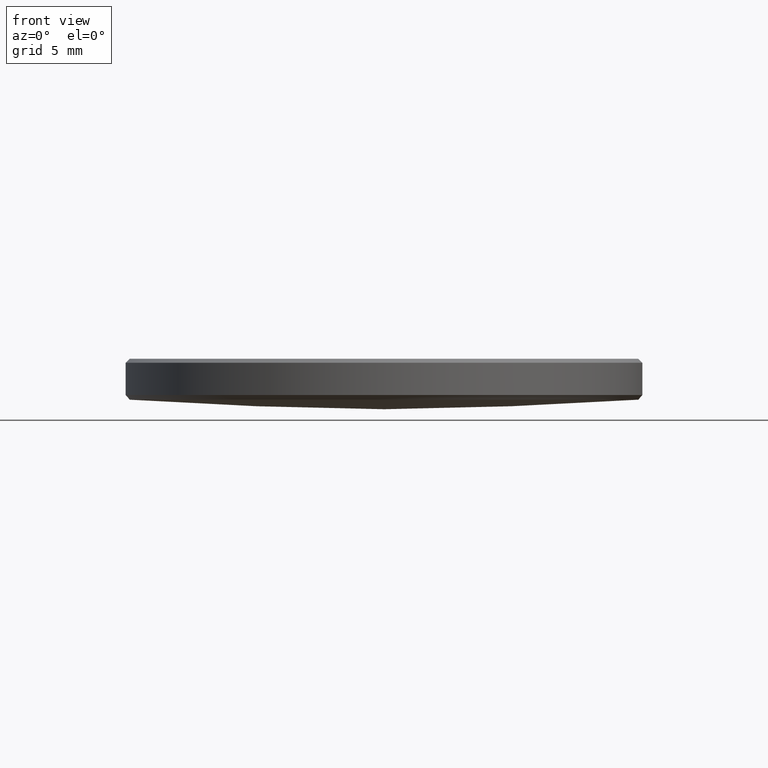
[diagram: clean part render]
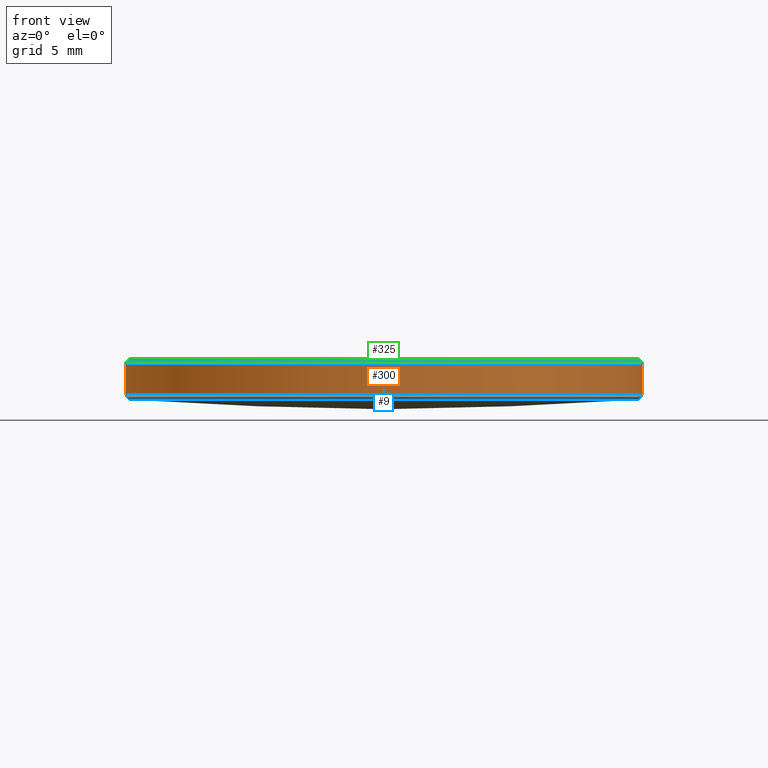
[diagram: same view with three faces highlighted in distinct colors, each labeled with its STEP entity id]
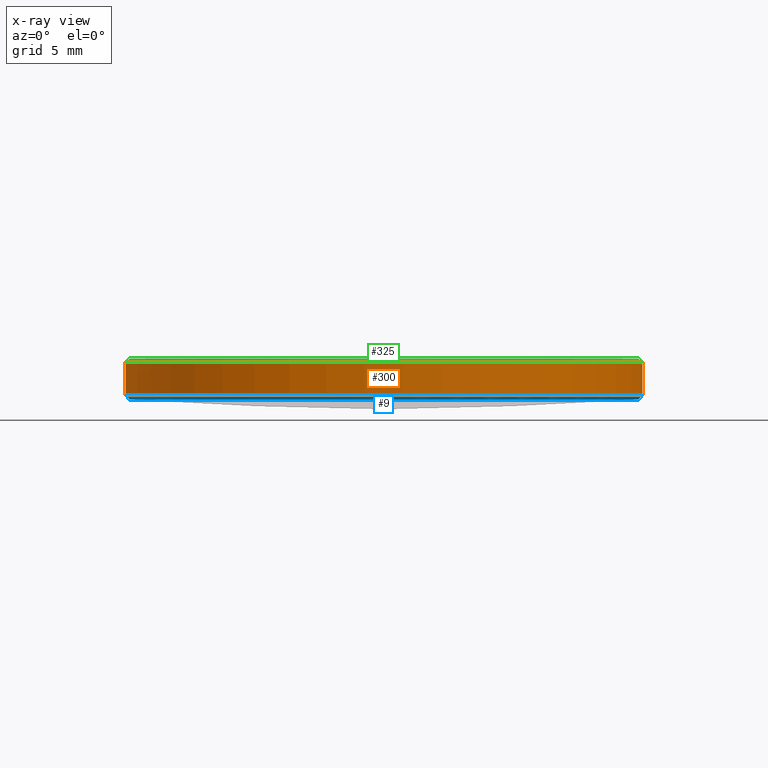
[diagram: x-ray of the same camera — body ghosted, the three highlighted faces saturated]
A machine part, front view with three faces highlighted in distinct colors.
The next image is the same camera in x-ray (body ghosted, the three faces saturated) — at least one of them is partly hidden behind the body in this view.
Their STEP definitions:

[orange] entity #300 — the highlighted cylindrical surface (partial cylindrical patch) has radius 12.7 mm, axis along (-0, -0, -1).
#4 = DIRECTION ( 'NONE',  ( -0.000000000000000000, -0.000000000000000000, -1.000000000000000000 ) ) ;
#8 = CARTESIAN_POINT ( 'NONE',  ( 0.000000000000000000, 0.000000000000000000, 10.00000000000000000 ) ) ;
#12 = CYLINDRICAL_SURFACE ( 'NONE', #14, 12.69999999999999929 ) ;
#14 = AXIS2_PLACEMENT_3D ( 'NONE', #8, #291, #68 ) ;
#29 = VECTOR ( 'NONE', #4, 1000.000000000000000 ) ;
#36 = CARTESIAN_POINT ( 'NONE',  ( -12.69999999999999929, 0.000000000000000000, 4.217170936316433583 ) ) ;
#37 = EDGE_CURVE ( 'NONE', #146, #219, #208, .T. ) ;
#43 = EDGE_CURVE ( 'NONE', #147, #129, #53, .T. ) ;
#47 = ORIENTED_EDGE ( 'NONE', *, *, #37, .T. ) ;
#49 = DIRECTION ( 'NONE',  ( 0.000000000000000000, 0.000000000000000000, -1.000000000000000000 ) ) ;
#53 = LINE ( 'NONE', #282, #29 ) ;
#66 = FACE_OUTER_BOUND ( 'NONE', #148, .T. ) ;
#68 = DIRECTION ( 'NONE',  ( -1.000000000000000000, 0.000000000000000000, 0.000000000000000000 ) ) ;
#72 = EDGE_CURVE ( 'NONE', #219, #129, #120, .T. ) ;
#73 = AXIS2_PLACEMENT_3D ( 'NONE', #87, #49, #149 ) ;
#87 = CARTESIAN_POINT ( 'NONE',  ( 0.000000000000000000, 0.000000000000000000, 5.799999999999916334 ) ) ;
#93 = ORIENTED_EDGE ( 'NONE', *, *, #43, .F. ) ;
#96 = ORIENTED_EDGE ( 'NONE', *, *, #133, .T. ) ;
#97 = VECTOR ( 'NONE', #234, 1000.000000000000000 ) ;
#120 = CIRCLE ( 'NONE', #321, 12.69999999999999929 ) ;
#129 = VERTEX_POINT ( 'NONE', #162 ) ;
#133 = EDGE_CURVE ( 'NONE', #147, #146, #194, .T. ) ;
#146 = VERTEX_POINT ( 'NONE', #307 ) ;
#147 = VERTEX_POINT ( 'NONE', #301 ) ;
#148 = EDGE_LOOP ( 'NONE', ( #93, #96, #47, #273 ) ) ;
#149 = DIRECTION ( 'NONE',  ( 1.000000000000000000, 0.000000000000000000, 0.000000000000000000 ) ) ;
#162 = CARTESIAN_POINT ( 'NONE',  ( 12.69999999999999929, 1.555301434917138433E-15, 4.217170936316433583 ) ) ;
#194 = CIRCLE ( 'NONE', #73, 12.69999999999999929 ) ;
#208 = LINE ( 'NONE', #278, #97 ) ;
#219 = VERTEX_POINT ( 'NONE', #36 ) ;
#234 = DIRECTION ( 'NONE',  ( -0.000000000000000000, -0.000000000000000000, -1.000000000000000000 ) ) ;
#273 = ORIENTED_EDGE ( 'NONE', *, *, #72, .T. ) ;
#278 = CARTESIAN_POINT ( 'NONE',  ( -12.69999999999999929, 0.000000000000000000, 10.00000000000000000 ) ) ;
#281 = DIRECTION ( 'NONE',  ( -1.000000000000000000, 0.000000000000000000, 0.000000000000000000 ) ) ;
#282 = CARTESIAN_POINT ( 'NONE',  ( 12.69999999999999929, 1.555301434917138433E-15, 10.00000000000000000 ) ) ;
#291 = DIRECTION ( 'NONE',  ( -0.000000000000000000, -0.000000000000000000, -1.000000000000000000 ) ) ;
#300 = ADVANCED_FACE ( 'NONE', ( #66 ), #12, .T. ) ;
#301 = CARTESIAN_POINT ( 'NONE',  ( 12.69999999999999929, 1.555301434917138433E-15, 5.799999999999916334 ) ) ;
#307 = CARTESIAN_POINT ( 'NONE',  ( -12.69999999999999929, 0.000000000000000000, 5.799999999999916334 ) ) ;
#321 = AXIS2_PLACEMENT_3D ( 'NONE', #330, #327, #281 ) ;
#327 = DIRECTION ( 'NONE',  ( -0.000000000000000000, -0.000000000000000000, 1.000000000000000000 ) ) ;
#330 = CARTESIAN_POINT ( 'NONE',  ( 0.000000000000000000, 0.000000000000000000, 4.217170936316433583 ) ) ;

[blue] entity #9 — the highlighted conical surface has half-angle 40.632 deg.
#1 = LINE ( 'NONE', #5, #167 ) ;
#5 = CARTESIAN_POINT ( 'NONE',  ( 12.69999999999999929, 0.000000000000000000, 4.217170936316433583 ) ) ;
#9 = ADVANCED_FACE ( 'NONE', ( #180 ), #127, .T. ) ;
#16 = EDGE_CURVE ( 'NONE', #39, #75, #314, .T. ) ;
#26 = CARTESIAN_POINT ( 'NONE',  ( 12.50069123197759424, 0.000000000000000000, 3.984896188597097932 ) ) ;
#30 = DIRECTION ( 'NONE',  ( 1.000000000000000000, 0.000000000000000000, 0.000000000000000000 ) ) ;
#34 = CARTESIAN_POINT ( 'NONE',  ( 0.000000000000000000, 0.000000000000000000, 4.217170936316433583 ) ) ;
#36 = CARTESIAN_POINT ( 'NONE',  ( -12.69999999999999929, 0.000000000000000000, 4.217170936316433583 ) ) ;
#39 = VERTEX_POINT ( 'NONE', #179 ) ;
#44 = ORIENTED_EDGE ( 'NONE', *, *, #151, .F. ) ;
#58 = CARTESIAN_POINT ( 'NONE',  ( 0.000000000000000000, 0.000000000000000000, 3.984896188597097932 ) ) ;
#72 = EDGE_CURVE ( 'NONE', #219, #129, #120, .T. ) ;
#74 = ORIENTED_EDGE ( 'NONE', *, *, #82, .F. ) ;
#75 = VERTEX_POINT ( 'NONE', #157 ) ;
#76 = EDGE_LOOP ( 'NONE', ( #44, #246, #74, #177, #247 ) ) ;
#82 = EDGE_CURVE ( 'NONE', #98, #39, #145, .T. ) ;
#85 = DIRECTION ( 'NONE',  ( -0.000000000000000000, -0.000000000000000000, 1.000000000000000000 ) ) ;
#86 = CARTESIAN_POINT ( 'NONE',  ( 0.000000000000000000, 0.000000000000000000, 3.984896188597097932 ) ) ;
#98 = VERTEX_POINT ( 'NONE', #26 ) ;
#112 = CARTESIAN_POINT ( 'NONE',  ( -12.69999999999999929, 1.555301434917138433E-15, 4.217170936316433583 ) ) ;
#116 = DIRECTION ( 'NONE',  ( 0.000000000000000000, 0.000000000000000000, -1.000000000000000000 ) ) ;
#120 = CIRCLE ( 'NONE', #321, 12.69999999999999929 ) ;
#127 = CONICAL_SURFACE ( 'NONE', #135, 12.69999999999999929, 0.7091624202061372895 ) ;
#129 = VERTEX_POINT ( 'NONE', #162 ) ;
#130 = DIRECTION ( 'NONE',  ( -0.6511983538683498995, 7.974879796749002511E-17, 0.7589075727116915138 ) ) ;
#135 = AXIS2_PLACEMENT_3D ( 'NONE', #34, #85, #232 ) ;
#145 = CIRCLE ( 'NONE', #173, 12.50069123197759424 ) ;
#151 = EDGE_CURVE ( 'NONE', #75, #219, #154, .T. ) ;
#154 = LINE ( 'NONE', #112, #252 ) ;
#157 = CARTESIAN_POINT ( 'NONE',  ( -12.50069123197759424, 1.543097292677106632E-15, 3.984896188597097932 ) ) ;
#162 = CARTESIAN_POINT ( 'NONE',  ( 12.69999999999999929, 1.555301434917138433E-15, 4.217170936316433583 ) ) ;
#167 = VECTOR ( 'NONE', #209, 1000.000000000000000 ) ;
#173 = AXIS2_PLACEMENT_3D ( 'NONE', #58, #116, #30 ) ;
#175 = AXIS2_PLACEMENT_3D ( 'NONE', #86, #184, #210 ) ;
#177 = ORIENTED_EDGE ( 'NONE', *, *, #253, .T. ) ;
#179 = CARTESIAN_POINT ( 'NONE',  ( -1.530893150437094356E-15, -12.50069123197775767, 3.984896188597097932 ) ) ;
#180 = FACE_OUTER_BOUND ( 'NONE', #76, .T. ) ;
#184 = DIRECTION ( 'NONE',  ( 0.000000000000000000, 0.000000000000000000, -1.000000000000000000 ) ) ;
#209 = DIRECTION ( 'NONE',  ( 0.6511983538683498995, 0.000000000000000000, 0.7589075727116915138 ) ) ;
#210 = DIRECTION ( 'NONE',  ( 1.000000000000000000, 0.000000000000000000, 0.000000000000000000 ) ) ;
#219 = VERTEX_POINT ( 'NONE', #36 ) ;
#232 = DIRECTION ( 'NONE',  ( 1.000000000000000000, 0.000000000000000000, 0.000000000000000000 ) ) ;
#246 = ORIENTED_EDGE ( 'NONE', *, *, #16, .F. ) ;
#247 = ORIENTED_EDGE ( 'NONE', *, *, #72, .F. ) ;
#252 = VECTOR ( 'NONE', #130, 1000.000000000000000 ) ;
#253 = EDGE_CURVE ( 'NONE', #98, #129, #1, .T. ) ;
#281 = DIRECTION ( 'NONE',  ( -1.000000000000000000, 0.000000000000000000, 0.000000000000000000 ) ) ;
#314 = CIRCLE ( 'NONE', #175, 12.50069123197759424 ) ;
#321 = AXIS2_PLACEMENT_3D ( 'NONE', #330, #327, #281 ) ;
#327 = DIRECTION ( 'NONE',  ( -0.000000000000000000, -0.000000000000000000, 1.000000000000000000 ) ) ;
#330 = CARTESIAN_POINT ( 'NONE',  ( 0.000000000000000000, 0.000000000000000000, 4.217170936316433583 ) ) ;

[green] entity #325 — the highlighted conical surface has half-angle 45 deg.
#3 = DIRECTION ( 'NONE',  ( -0.7071067811865506814, 0.000000000000000000, -0.7071067811865443531 ) ) ;
#13 = CIRCLE ( 'NONE', #119, 12.50409250075131062 ) ;
#17 = CIRCLE ( 'NONE', #238, 12.50409250075131062 ) ;
#24 = VERTEX_POINT ( 'NONE', #236 ) ;
#49 = DIRECTION ( 'NONE',  ( 0.000000000000000000, 0.000000000000000000, -1.000000000000000000 ) ) ;
#69 = VECTOR ( 'NONE', #3, 1000.000000000000114 ) ;
#73 = AXIS2_PLACEMENT_3D ( 'NONE', #87, #49, #149 ) ;
#78 = EDGE_LOOP ( 'NONE', ( #320, #196, #200, #172, #102 ) ) ;
#87 = CARTESIAN_POINT ( 'NONE',  ( 0.000000000000000000, 0.000000000000000000, 5.799999999999916334 ) ) ;
#92 = DIRECTION ( 'NONE',  ( -1.000000000000000000, 0.000000000000000000, 0.000000000000000000 ) ) ;
#102 = ORIENTED_EDGE ( 'NONE', *, *, #133, .F. ) ;
#103 = CONICAL_SURFACE ( 'NONE', #226, 12.50409250075130529, 0.7853981633974528309 ) ;
#107 = CARTESIAN_POINT ( 'NONE',  ( 0.000000000000000000, 0.000000000000000000, 5.995907499248387396 ) ) ;
#113 = DIRECTION ( 'NONE',  ( 1.000000000000000000, 0.000000000000000000, 0.000000000000000000 ) ) ;
#119 = AXIS2_PLACEMENT_3D ( 'NONE', #224, #285, #202 ) ;
#133 = EDGE_CURVE ( 'NONE', #147, #146, #194, .T. ) ;
#146 = VERTEX_POINT ( 'NONE', #307 ) ;
#147 = VERTEX_POINT ( 'NONE', #301 ) ;
#149 = DIRECTION ( 'NONE',  ( 1.000000000000000000, 0.000000000000000000, 0.000000000000000000 ) ) ;
#153 = LINE ( 'NONE', #156, #205 ) ;
#156 = CARTESIAN_POINT ( 'NONE',  ( 12.50409250075130529, 1.531309685728750775E-15, 5.995907499248609440 ) ) ;
#166 = EDGE_CURVE ( 'NONE', #198, #191, #13, .T. ) ;
#172 = ORIENTED_EDGE ( 'NONE', *, *, #266, .T. ) ;
#185 = CARTESIAN_POINT ( 'NONE',  ( -12.50409250075131062, 0.000000000000000000, 5.995907499248387396 ) ) ;
#191 = VERTEX_POINT ( 'NONE', #306 ) ;
#194 = CIRCLE ( 'NONE', #73, 12.69999999999999929 ) ;
#196 = ORIENTED_EDGE ( 'NONE', *, *, #263, .F. ) ;
#198 = VERTEX_POINT ( 'NONE', #185 ) ;
#200 = ORIENTED_EDGE ( 'NONE', *, *, #166, .F. ) ;
#202 = DIRECTION ( 'NONE',  ( 1.000000000000000000, 0.000000000000000000, 0.000000000000000000 ) ) ;
#203 = DIRECTION ( 'NONE',  ( -0.000000000000000000, -0.000000000000000000, 1.000000000000000000 ) ) ;
#205 = VECTOR ( 'NONE', #250, 1000.000000000000114 ) ;
#216 = CARTESIAN_POINT ( 'NONE',  ( 0.000000000000000000, 0.000000000000000000, 5.995907499248609440 ) ) ;
#218 = EDGE_CURVE ( 'NONE', #24, #147, #153, .T. ) ;
#224 = CARTESIAN_POINT ( 'NONE',  ( 0.000000000000000000, 0.000000000000000000, 5.995907499248387396 ) ) ;
#226 = AXIS2_PLACEMENT_3D ( 'NONE', #216, #316, #92 ) ;
#235 = LINE ( 'NONE', #303, #69 ) ;
#236 = CARTESIAN_POINT ( 'NONE',  ( 12.50409250075131062, 1.543305560322944900E-15, 5.995907499248387396 ) ) ;
#238 = AXIS2_PLACEMENT_3D ( 'NONE', #107, #203, #113 ) ;
#250 = DIRECTION ( 'NONE',  ( 0.7071067811865506814, 8.659560562354969836E-17, -0.7071067811865443531 ) ) ;
#262 = FACE_OUTER_BOUND ( 'NONE', #78, .T. ) ;
#263 = EDGE_CURVE ( 'NONE', #191, #24, #17, .T. ) ;
#266 = EDGE_CURVE ( 'NONE', #198, #146, #235, .T. ) ;
#285 = DIRECTION ( 'NONE',  ( -0.000000000000000000, -0.000000000000000000, 1.000000000000000000 ) ) ;
#301 = CARTESIAN_POINT ( 'NONE',  ( 12.69999999999999929, 1.555301434917138433E-15, 5.799999999999916334 ) ) ;
#303 = CARTESIAN_POINT ( 'NONE',  ( -12.50409250075130529, 0.000000000000000000, 5.995907499248609440 ) ) ;
#306 = CARTESIAN_POINT ( 'NONE',  ( -1.531309685728248665E-15, -12.50409250074720546, 5.995907499248387396 ) ) ;
#307 = CARTESIAN_POINT ( 'NONE',  ( -12.69999999999999929, 0.000000000000000000, 5.799999999999916334 ) ) ;
#316 = DIRECTION ( 'NONE',  ( 0.000000000000000000, 0.000000000000000000, -1.000000000000000000 ) ) ;
#320 = ORIENTED_EDGE ( 'NONE', *, *, #218, .F. ) ;
#325 = ADVANCED_FACE ( 'NONE', ( #262 ), #103, .T. ) ;